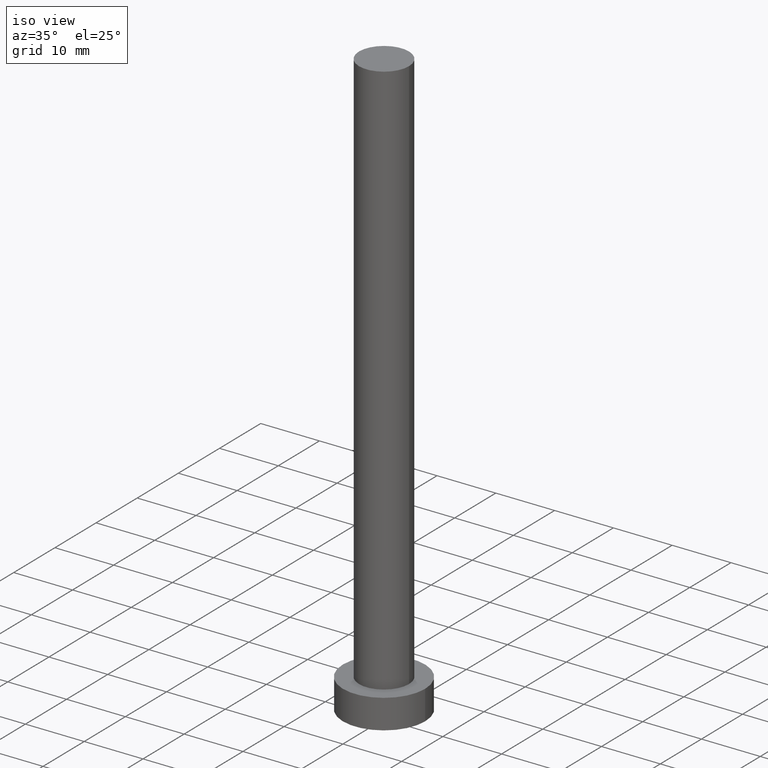
[diagram: clean part render]
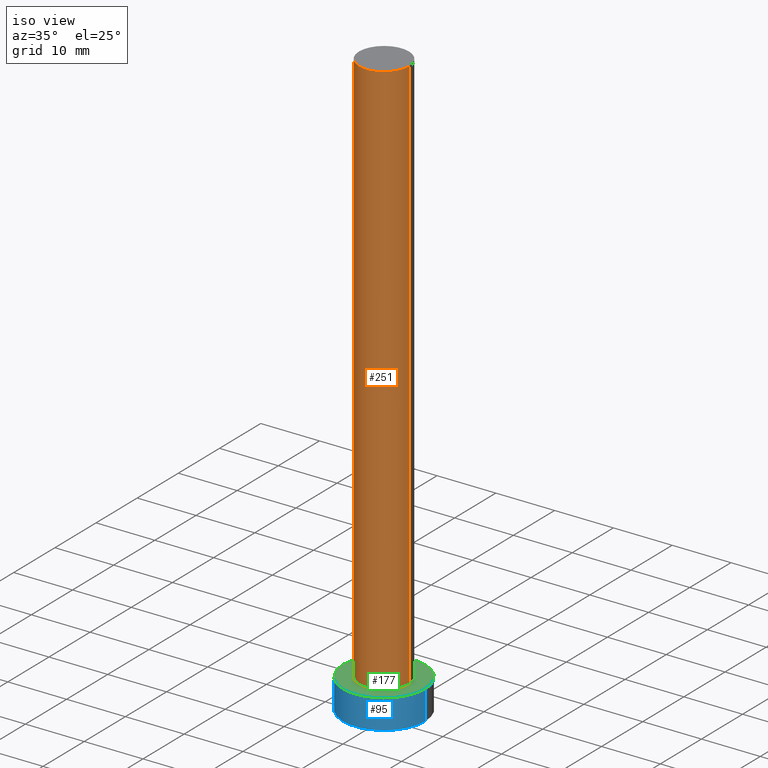
[diagram: same view with three faces highlighted in distinct colors, each labeled with its STEP entity id]
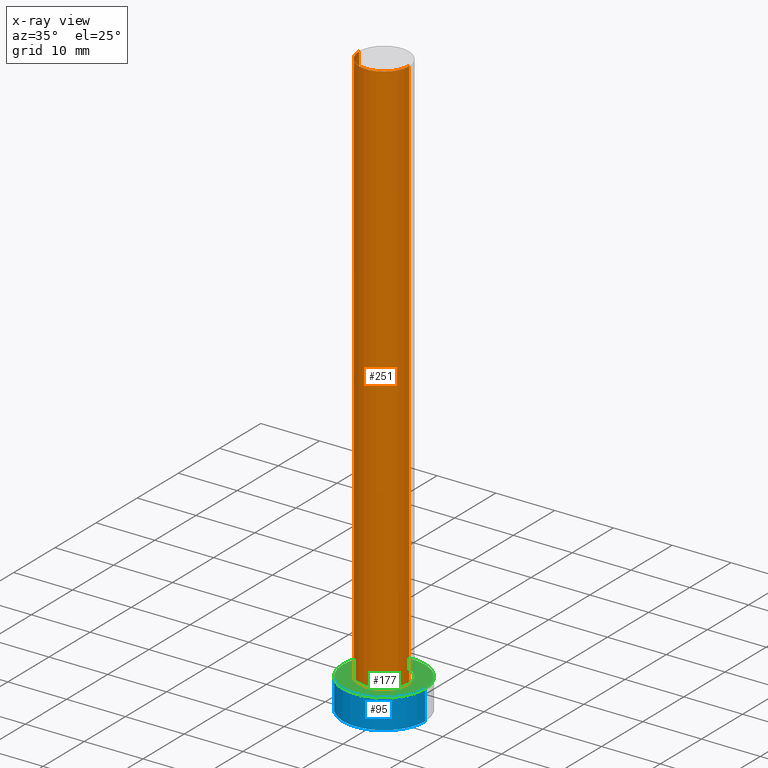
[diagram: x-ray of the same camera — body ghosted, the three highlighted faces saturated]
A machine part, iso view with three faces highlighted in distinct colors.
The next image is the same camera in x-ray (body ghosted, the three faces saturated) — at least one of them is partly hidden behind the body in this view.
Their STEP definitions:

[orange] entity #251 — the highlighted cylindrical surface (edge-blend (fillet) strip) has radius 4.25 mm, axis along (-0, -0, -1).
#2 = EDGE_CURVE ( 'NONE', #128, #208, #150, .T. ) ;
#5 = EDGE_CURVE ( 'NONE', #208, #34, #149, .T. ) ;
#34 = VERTEX_POINT ( 'NONE', #171 ) ;
#35 = VECTOR ( 'NONE', #56, 1000.000000000000000 ) ;
#50 = DIRECTION ( 'NONE',  ( -0.000000000000000000, -0.000000000000000000, -1.000000000000000000 ) ) ;
#54 = AXIS2_PLACEMENT_3D ( 'NONE', #212, #175, #100 ) ;
#56 = DIRECTION ( 'NONE',  ( -0.000000000000000000, -0.000000000000000000, -1.000000000000000000 ) ) ;
#59 = LINE ( 'NONE', #98, #35 ) ;
#67 = ORIENTED_EDGE ( 'NONE', *, *, #169, .T. ) ;
#79 = CARTESIAN_POINT ( 'NONE',  ( 4.250000000000000000, 5.204748896376250699E-16, 100.0000000000000000 ) ) ;
#80 = DIRECTION ( 'NONE',  ( 1.000000000000000000, 0.000000000000000000, 0.000000000000000000 ) ) ;
#96 = CARTESIAN_POINT ( 'NONE',  ( -4.250000000000000000, 0.000000000000000000, 5.000000000000000000 ) ) ;
#98 = CARTESIAN_POINT ( 'NONE',  ( -4.250000000000000000, 0.000000000000000000, 100.0000000000000000 ) ) ;
#99 = AXIS2_PLACEMENT_3D ( 'NONE', #250, #155, #80 ) ;
#100 = DIRECTION ( 'NONE',  ( -1.000000000000000000, 0.000000000000000000, 0.000000000000000000 ) ) ;
#112 = CARTESIAN_POINT ( 'NONE',  ( 0.000000000000000000, 0.000000000000000000, 100.0000000000000000 ) ) ;
#120 = CYLINDRICAL_SURFACE ( 'NONE', #54, 4.250000000000000000 ) ;
#128 = VERTEX_POINT ( 'NONE', #213 ) ;
#132 = EDGE_LOOP ( 'NONE', ( #248, #184, #151, #67 ) ) ;
#145 = VERTEX_POINT ( 'NONE', #96 ) ;
#149 = LINE ( 'NONE', #245, #209 ) ;
#150 = CIRCLE ( 'NONE', #243, 4.250000000000000000 ) ;
#151 = ORIENTED_EDGE ( 'NONE', *, *, #206, .T. ) ;
#155 = DIRECTION ( 'NONE',  ( 0.000000000000000000, 0.000000000000000000, 1.000000000000000000 ) ) ;
#158 = FACE_OUTER_BOUND ( 'NONE', #132, .T. ) ;
#169 = EDGE_CURVE ( 'NONE', #145, #34, #221, .T. ) ;
#171 = CARTESIAN_POINT ( 'NONE',  ( 4.250000000000000000, 5.204748896376250699E-16, 5.000000000000000000 ) ) ;
#175 = DIRECTION ( 'NONE',  ( -0.000000000000000000, -0.000000000000000000, -1.000000000000000000 ) ) ;
#184 = ORIENTED_EDGE ( 'NONE', *, *, #2, .F. ) ;
#191 = DIRECTION ( 'NONE',  ( 1.000000000000000000, 0.000000000000000000, 0.000000000000000000 ) ) ;
#206 = EDGE_CURVE ( 'NONE', #128, #145, #59, .T. ) ;
#208 = VERTEX_POINT ( 'NONE', #79 ) ;
#209 = VECTOR ( 'NONE', #50, 1000.000000000000000 ) ;
#212 = CARTESIAN_POINT ( 'NONE',  ( 0.000000000000000000, 0.000000000000000000, 100.0000000000000000 ) ) ;
#213 = CARTESIAN_POINT ( 'NONE',  ( -4.250000000000000000, 0.000000000000000000, 100.0000000000000000 ) ) ;
#221 = CIRCLE ( 'NONE', #99, 4.250000000000000000 ) ;
#243 = AXIS2_PLACEMENT_3D ( 'NONE', #112, #247, #191 ) ;
#245 = CARTESIAN_POINT ( 'NONE',  ( 4.250000000000000000, 5.204748896376250699E-16, 100.0000000000000000 ) ) ;
#247 = DIRECTION ( 'NONE',  ( 0.000000000000000000, 0.000000000000000000, 1.000000000000000000 ) ) ;
#248 = ORIENTED_EDGE ( 'NONE', *, *, #5, .F. ) ;
#250 = CARTESIAN_POINT ( 'NONE',  ( 0.000000000000000000, 0.000000000000000000, 5.000000000000000000 ) ) ;
#251 = ADVANCED_FACE ( 'NONE', ( #158 ), #120, .T. ) ;

[blue] entity #95 — the highlighted cylindrical surface (partial cylindrical patch) has radius 7 mm, axis along (-0, -0, -1).
#4 = CARTESIAN_POINT ( 'NONE',  ( -7.000000000000000000, 0.000000000000000000, 5.000000000000000000 ) ) ;
#8 = ORIENTED_EDGE ( 'NONE', *, *, #45, .T. ) ;
#17 = CARTESIAN_POINT ( 'NONE',  ( 7.000000000000000000, 8.572527594031473190E-16, 0.000000000000000000 ) ) ;
#18 = CIRCLE ( 'NONE', #222, 7.000000000000000000 ) ;
#19 = CARTESIAN_POINT ( 'NONE',  ( -7.000000000000000000, 0.000000000000000000, 0.000000000000000000 ) ) ;
#20 = DIRECTION ( 'NONE',  ( 1.000000000000000000, 0.000000000000000000, 0.000000000000000000 ) ) ;
#21 = VECTOR ( 'NONE', #232, 1000.000000000000000 ) ;
#32 = AXIS2_PLACEMENT_3D ( 'NONE', #237, #101, #20 ) ;
#36 = CARTESIAN_POINT ( 'NONE',  ( 0.000000000000000000, 0.000000000000000000, 5.000000000000000000 ) ) ;
#37 = CARTESIAN_POINT ( 'NONE',  ( -7.000000000000000000, 0.000000000000000000, 5.000000000000000000 ) ) ;
#45 = EDGE_CURVE ( 'NONE', #90, #148, #108, .T. ) ;
#47 = EDGE_LOOP ( 'NONE', ( #69, #49, #8, #210 ) ) ;
#49 = ORIENTED_EDGE ( 'NONE', *, *, #135, .F. ) ;
#51 = VERTEX_POINT ( 'NONE', #113 ) ;
#53 = DIRECTION ( 'NONE',  ( -0.000000000000000000, -0.000000000000000000, -1.000000000000000000 ) ) ;
#69 = ORIENTED_EDGE ( 'NONE', *, *, #240, .F. ) ;
#74 = DIRECTION ( 'NONE',  ( -1.000000000000000000, 0.000000000000000000, 0.000000000000000000 ) ) ;
#90 = VERTEX_POINT ( 'NONE', #37 ) ;
#95 = ADVANCED_FACE ( 'NONE', ( #253 ), #118, .T. ) ;
#101 = DIRECTION ( 'NONE',  ( 0.000000000000000000, 0.000000000000000000, 1.000000000000000000 ) ) ;
#103 = CIRCLE ( 'NONE', #32, 7.000000000000000000 ) ;
#108 = LINE ( 'NONE', #4, #163 ) ;
#113 = CARTESIAN_POINT ( 'NONE',  ( 7.000000000000000000, 8.572527594031473190E-16, 5.000000000000000000 ) ) ;
#118 = CYLINDRICAL_SURFACE ( 'NONE', #181, 7.000000000000000000 ) ;
#122 = CARTESIAN_POINT ( 'NONE',  ( 0.000000000000000000, 0.000000000000000000, 0.000000000000000000 ) ) ;
#131 = EDGE_CURVE ( 'NONE', #148, #172, #18, .T. ) ;
#134 = LINE ( 'NONE', #138, #21 ) ;
#135 = EDGE_CURVE ( 'NONE', #90, #51, #103, .T. ) ;
#138 = CARTESIAN_POINT ( 'NONE',  ( 7.000000000000000000, 8.572527594031473190E-16, 5.000000000000000000 ) ) ;
#148 = VERTEX_POINT ( 'NONE', #19 ) ;
#157 = DIRECTION ( 'NONE',  ( 1.000000000000000000, 0.000000000000000000, 0.000000000000000000 ) ) ;
#163 = VECTOR ( 'NONE', #228, 1000.000000000000000 ) ;
#172 = VERTEX_POINT ( 'NONE', #17 ) ;
#181 = AXIS2_PLACEMENT_3D ( 'NONE', #36, #53, #74 ) ;
#210 = ORIENTED_EDGE ( 'NONE', *, *, #131, .T. ) ;
#222 = AXIS2_PLACEMENT_3D ( 'NONE', #122, #236, #157 ) ;
#228 = DIRECTION ( 'NONE',  ( -0.000000000000000000, -0.000000000000000000, -1.000000000000000000 ) ) ;
#232 = DIRECTION ( 'NONE',  ( -0.000000000000000000, -0.000000000000000000, -1.000000000000000000 ) ) ;
#236 = DIRECTION ( 'NONE',  ( 0.000000000000000000, 0.000000000000000000, 1.000000000000000000 ) ) ;
#237 = CARTESIAN_POINT ( 'NONE',  ( 0.000000000000000000, 0.000000000000000000, 5.000000000000000000 ) ) ;
#240 = EDGE_CURVE ( 'NONE', #51, #172, #134, .T. ) ;
#253 = FACE_OUTER_BOUND ( 'NONE', #47, .T. ) ;

[green] entity #177 — the highlighted planar face has unit normal (0, 0, 1).
#12 = ORIENTED_EDGE ( 'NONE', *, *, #169, .F. ) ;
#20 = DIRECTION ( 'NONE',  ( 1.000000000000000000, 0.000000000000000000, 0.000000000000000000 ) ) ;
#25 = EDGE_LOOP ( 'NONE', ( #33, #133 ) ) ;
#26 = EDGE_CURVE ( 'NONE', #51, #90, #233, .T. ) ;
#32 = AXIS2_PLACEMENT_3D ( 'NONE', #237, #101, #20 ) ;
#33 = ORIENTED_EDGE ( 'NONE', *, *, #135, .T. ) ;
#34 = VERTEX_POINT ( 'NONE', #171 ) ;
#37 = CARTESIAN_POINT ( 'NONE',  ( -7.000000000000000000, 0.000000000000000000, 5.000000000000000000 ) ) ;
#43 = AXIS2_PLACEMENT_3D ( 'NONE', #195, #156, #234 ) ;
#51 = VERTEX_POINT ( 'NONE', #113 ) ;
#68 = AXIS2_PLACEMENT_3D ( 'NONE', #211, #91, #170 ) ;
#77 = PLANE ( 'NONE',  #43 ) ;
#80 = DIRECTION ( 'NONE',  ( 1.000000000000000000, 0.000000000000000000, 0.000000000000000000 ) ) ;
#90 = VERTEX_POINT ( 'NONE', #37 ) ;
#91 = DIRECTION ( 'NONE',  ( 0.000000000000000000, 0.000000000000000000, 1.000000000000000000 ) ) ;
#96 = CARTESIAN_POINT ( 'NONE',  ( -4.250000000000000000, 0.000000000000000000, 5.000000000000000000 ) ) ;
#99 = AXIS2_PLACEMENT_3D ( 'NONE', #250, #155, #80 ) ;
#101 = DIRECTION ( 'NONE',  ( 0.000000000000000000, 0.000000000000000000, 1.000000000000000000 ) ) ;
#103 = CIRCLE ( 'NONE', #32, 7.000000000000000000 ) ;
#113 = CARTESIAN_POINT ( 'NONE',  ( 7.000000000000000000, 8.572527594031473190E-16, 5.000000000000000000 ) ) ;
#117 = AXIS2_PLACEMENT_3D ( 'NONE', #178, #216, #239 ) ;
#121 = FACE_BOUND ( 'NONE', #192, .T. ) ;
#133 = ORIENTED_EDGE ( 'NONE', *, *, #26, .T. ) ;
#135 = EDGE_CURVE ( 'NONE', #90, #51, #103, .T. ) ;
#145 = VERTEX_POINT ( 'NONE', #96 ) ;
#155 = DIRECTION ( 'NONE',  ( 0.000000000000000000, 0.000000000000000000, 1.000000000000000000 ) ) ;
#156 = DIRECTION ( 'NONE',  ( 0.000000000000000000, 0.000000000000000000, 1.000000000000000000 ) ) ;
#169 = EDGE_CURVE ( 'NONE', #145, #34, #221, .T. ) ;
#170 = DIRECTION ( 'NONE',  ( 1.000000000000000000, 0.000000000000000000, 0.000000000000000000 ) ) ;
#171 = CARTESIAN_POINT ( 'NONE',  ( 4.250000000000000000, 5.204748896376250699E-16, 5.000000000000000000 ) ) ;
#177 = ADVANCED_FACE ( 'NONE', ( #121, #214 ), #77, .T. ) ;
#178 = CARTESIAN_POINT ( 'NONE',  ( 0.000000000000000000, 0.000000000000000000, 5.000000000000000000 ) ) ;
#190 = EDGE_CURVE ( 'NONE', #34, #145, #242, .T. ) ;
#192 = EDGE_LOOP ( 'NONE', ( #12, #241 ) ) ;
#195 = CARTESIAN_POINT ( 'NONE',  ( 0.000000000000000000, 0.000000000000000000, 5.000000000000000000 ) ) ;
#211 = CARTESIAN_POINT ( 'NONE',  ( 0.000000000000000000, 0.000000000000000000, 5.000000000000000000 ) ) ;
#214 = FACE_OUTER_BOUND ( 'NONE', #25, .T. ) ;
#216 = DIRECTION ( 'NONE',  ( 0.000000000000000000, 0.000000000000000000, 1.000000000000000000 ) ) ;
#221 = CIRCLE ( 'NONE', #99, 4.250000000000000000 ) ;
#233 = CIRCLE ( 'NONE', #68, 7.000000000000000000 ) ;
#234 = DIRECTION ( 'NONE',  ( 1.000000000000000000, 0.000000000000000000, -0.000000000000000000 ) ) ;
#237 = CARTESIAN_POINT ( 'NONE',  ( 0.000000000000000000, 0.000000000000000000, 5.000000000000000000 ) ) ;
#239 = DIRECTION ( 'NONE',  ( 1.000000000000000000, 0.000000000000000000, 0.000000000000000000 ) ) ;
#241 = ORIENTED_EDGE ( 'NONE', *, *, #190, .F. ) ;
#242 = CIRCLE ( 'NONE', #117, 4.250000000000000000 ) ;
#250 = CARTESIAN_POINT ( 'NONE',  ( 0.000000000000000000, 0.000000000000000000, 5.000000000000000000 ) ) ;